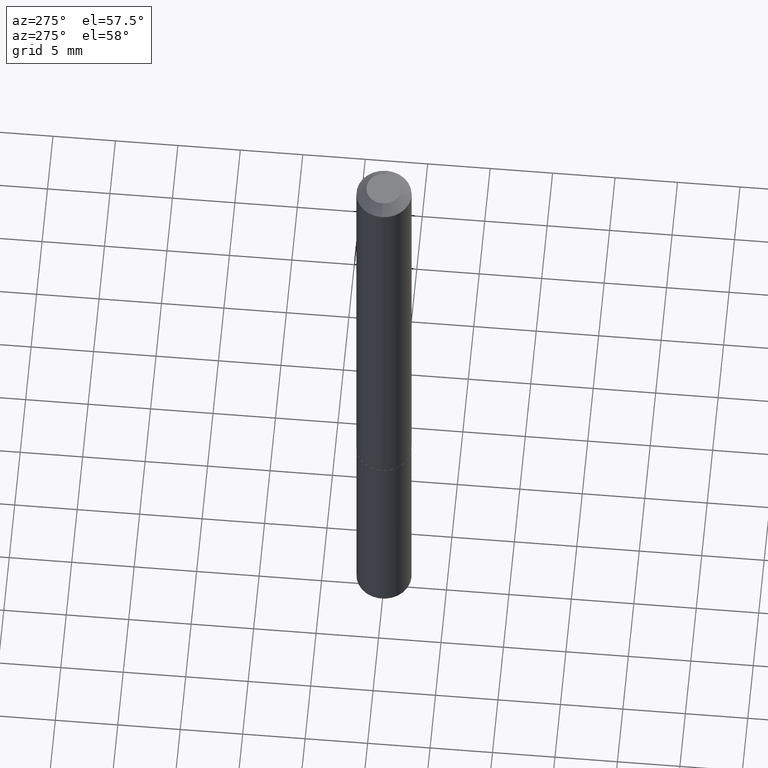
[diagram: clean part render]
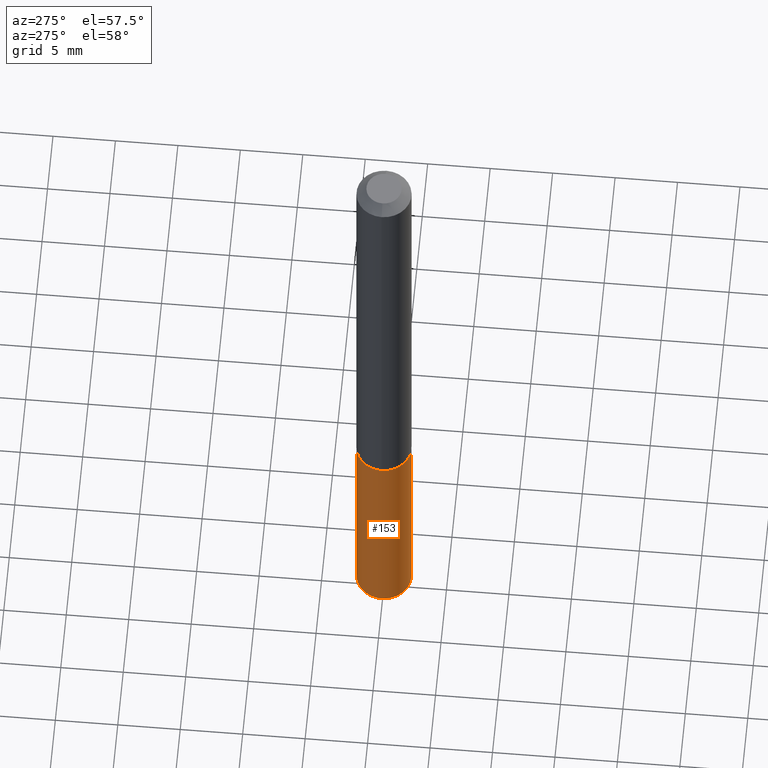
[diagram: same view with one face highlighted and labeled with its STEP entity id]
A machine part, auxiliary view. The second image highlights one B-rep face of the part: STEP entity #153.
In plain terms, the highlighted cylindrical surface (edge-blend (fillet) strip) has radius 2.1996 mm, axis along (-0, 0, 1).
Its self-contained STEP definition (entity closure, byte-faithful):
#26 = EDGE_LOOP ( 'NONE', ( #322, #354, #362, #259 ) ) ;
#50 = EDGE_CURVE ( 'NONE', #58, #282, #335, .T. ) ;
#58 = VERTEX_POINT ( 'NONE', #320 ) ;
#74 = EDGE_CURVE ( 'NONE', #376, #58, #146, .T. ) ;
#79 = CARTESIAN_POINT ( 'NONE',  ( 5.527544211941337752E-29, -7.891691364021204268E-15, -2.260295599935465471 ) ) ;
#82 = CIRCLE ( 'NONE', #101, 0.08659999999999998255 ) ;
#91 = CARTESIAN_POINT ( 'NONE',  ( 3.697059741190689517E-29, -5.278421488063067239E-15, -1.511800000000000033 ) ) ;
#95 = CARTESIAN_POINT ( 'NONE',  ( -6.047245678875935520E-16, -0.08660000000000526998, -1.511799999999999811 ) ) ;
#98 = DIRECTION ( 'NONE',  ( -6.982962677686265922E-15, -1.000000000000000000, 3.154558884138872662E-15 ) ) ;
#101 = AXIS2_PLACEMENT_3D ( 'NONE', #79, #168, #234 ) ;
#135 = CYLINDRICAL_SURFACE ( 'NONE', #161, 0.08659999999999998255 ) ;
#139 = VECTOR ( 'NONE', #295, 39.37007874015748143 ) ;
#146 = LINE ( 'NONE', #265, #139 ) ;
#153 = ADVANCED_FACE ( 'NONE', ( #315 ), #135, .T. ) ;
#161 = AXIS2_PLACEMENT_3D ( 'NONE', #309, #369, #258 ) ;
#168 = DIRECTION ( 'NONE',  ( -2.445551411268778157E-29, 3.491363043661781332E-15, 1.000000000000000000 ) ) ;
#201 = EDGE_CURVE ( 'NONE', #376, #343, #82, .T. ) ;
#234 = DIRECTION ( 'NONE',  ( -6.982962677686265922E-15, -1.000000000000000000, 3.154558884138872662E-15 ) ) ;
#236 = CARTESIAN_POINT ( 'NONE',  ( -6.047245678875748166E-16, -0.08660000000000783738, -2.260295599935465027 ) ) ;
#244 = AXIS2_PLACEMENT_3D ( 'NONE', #91, #249, #98 ) ;
#249 = DIRECTION ( 'NONE',  ( -2.445551411268778157E-29, 3.491363043661781332E-15, 1.000000000000000000 ) ) ;
#258 = DIRECTION ( 'NONE',  ( -6.982962677686265922E-15, -1.000000000000000000, 3.154558884138872662E-15 ) ) ;
#259 = ORIENTED_EDGE ( 'NONE', *, *, #50, .F. ) ;
#265 = CARTESIAN_POINT ( 'NONE',  ( 6.153300091682836148E-16, 0.08659999999999470899, -1.511800000000000255 ) ) ;
#282 = VERTEX_POINT ( 'NONE', #312 ) ;
#295 = DIRECTION ( 'NONE',  ( -2.445551411268778157E-29, 3.491363043661781332E-15, 1.000000000000000000 ) ) ;
#309 = CARTESIAN_POINT ( 'NONE',  ( 3.697059741190689517E-29, -5.278421488063067239E-15, -1.511800000000000033 ) ) ;
#312 = CARTESIAN_POINT ( 'NONE',  ( -6.047245678875935520E-16, -0.08660000000000526998, -1.511799999999999811 ) ) ;
#315 = FACE_OUTER_BOUND ( 'NONE', #26, .T. ) ;
#320 = CARTESIAN_POINT ( 'NONE',  ( 6.153300091683017586E-16, 0.08659999999999469511, -1.511800000000000255 ) ) ;
#322 = ORIENTED_EDGE ( 'NONE', *, *, #74, .F. ) ;
#333 = EDGE_CURVE ( 'NONE', #343, #282, #382, .T. ) ;
#335 = CIRCLE ( 'NONE', #244, 0.08659999999999998255 ) ;
#343 = VERTEX_POINT ( 'NONE', #236 ) ;
#349 = VECTOR ( 'NONE', #387, 39.37007874015748143 ) ;
#354 = ORIENTED_EDGE ( 'NONE', *, *, #201, .T. ) ;
#362 = ORIENTED_EDGE ( 'NONE', *, *, #333, .T. ) ;
#369 = DIRECTION ( 'NONE',  ( -2.445551411268778157E-29, 3.491363043661781332E-15, 1.000000000000000000 ) ) ;
#376 = VERTEX_POINT ( 'NONE', #385 ) ;
#382 = LINE ( 'NONE', #95, #349 ) ;
#385 = CARTESIAN_POINT ( 'NONE',  ( 6.153300091683016600E-16, 0.08659999999999204445, -2.260295599935465471 ) ) ;
#387 = DIRECTION ( 'NONE',  ( -2.445551411268778157E-29, 3.491363043661781332E-15, 1.000000000000000000 ) ) ;